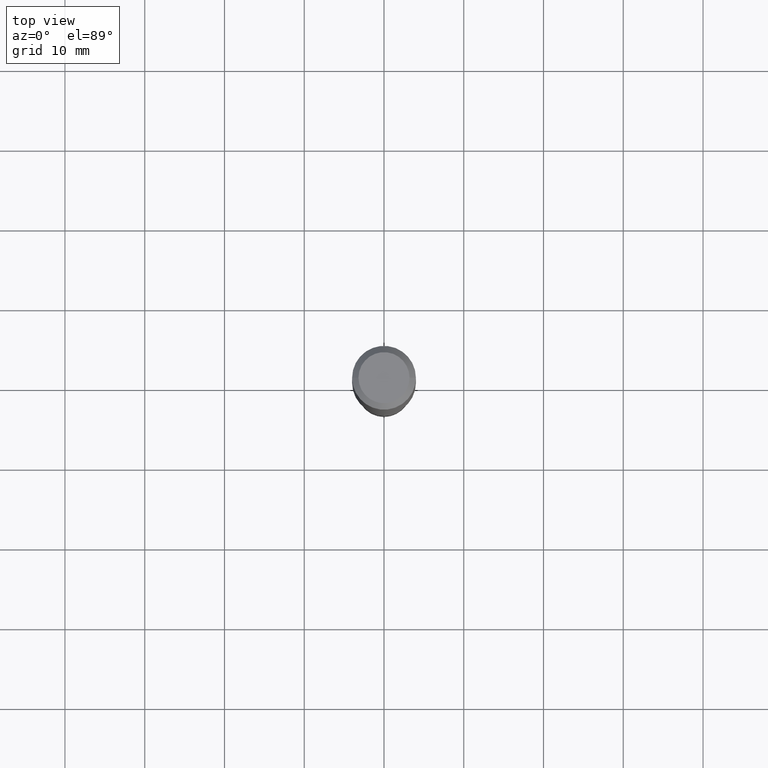
[diagram: clean part render]
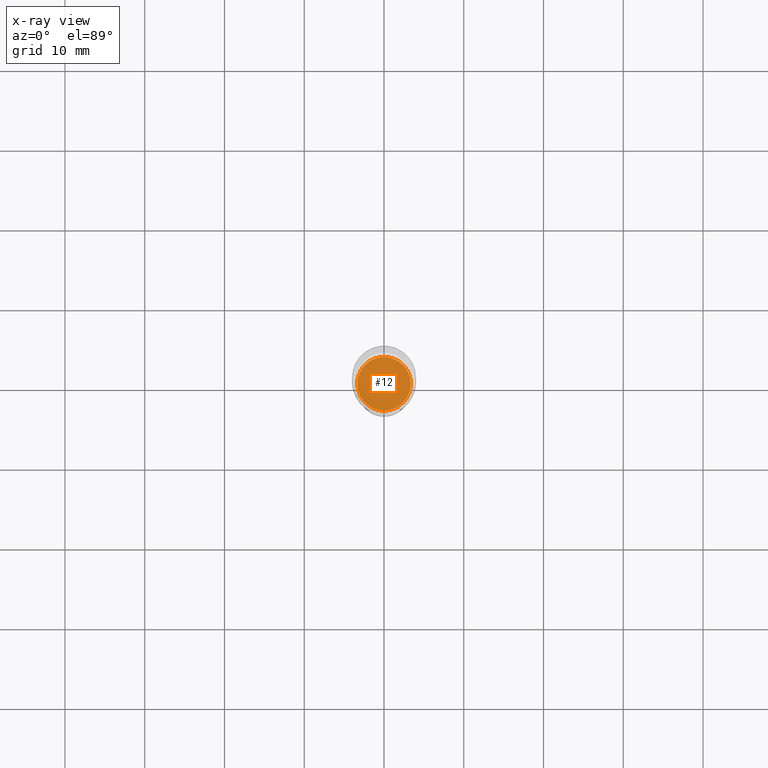
[diagram: x-ray — body ghosted, one internal face saturated and labeled with its STEP entity id]
A machine part, top view, then the same camera in x-ray: the body is ghosted and one INTERNAL B-rep face — a face not visible from any outside direction — is saturated and labeled: STEP entity #12.
In plain terms, the highlighted planar face has unit normal (-0, 0, 1).
Its self-contained STEP definition (entity closure, byte-faithful):
#4 = ORIENTED_EDGE ( 'NONE', *, *, #234, .F. ) ;
#12 = ADVANCED_FACE ( 'NONE', ( #461 ), #120, .F. ) ;
#16 = DIRECTION ( 'NONE',  ( 1.000000000000000000, -6.982962677686267499E-15, 0.000000000000000000 ) ) ;
#27 = DIRECTION ( 'NONE',  ( -2.445468806185136597E-29, 3.491481338843145583E-15, 1.000000000000000000 ) ) ;
#54 = CIRCLE ( 'NONE', #336, 0.1323000000000000009 ) ;
#82 = EDGE_LOOP ( 'NONE', ( #318, #4 ) ) ;
#90 = DIRECTION ( 'NONE',  ( -2.438088387897960049E-29, 3.491481338843145188E-15, 1.000000000000000000 ) ) ;
#120 = PLANE ( 'NONE',  #167 ) ;
#160 = CARTESIAN_POINT ( 'NONE',  ( 6.847996289675660133E-29, -2.513085268275572980E-15, -1.761599999999999611 ) ) ;
#167 = AXIS2_PLACEMENT_3D ( 'NONE', #160, #90, #201 ) ;
#193 = CARTESIAN_POINT ( 'NONE',  ( 4.307937848975735537E-29, -6.150593526506083554E-15, -1.761599999999999611 ) ) ;
#201 = DIRECTION ( 'NONE',  ( 1.000000000000000000, -6.982962677686265922E-15, 4.876176775795935793E-29 ) ) ;
#207 = CARTESIAN_POINT ( 'NONE',  ( 4.307937848975735537E-29, -6.150593526506083554E-15, -1.761599999999999611 ) ) ;
#212 = CARTESIAN_POINT ( 'NONE',  ( -0.1323000000000000009, -5.207896259921361575E-15, -1.761599999999999611 ) ) ;
#234 = EDGE_CURVE ( 'NONE', #272, #397, #433, .T. ) ;
#272 = VERTEX_POINT ( 'NONE', #212 ) ;
#280 = CARTESIAN_POINT ( 'NONE',  ( 0.1323000000000000009, -7.074439488763977163E-15, -1.761599999999999611 ) ) ;
#292 = DIRECTION ( 'NONE',  ( 1.000000000000000000, -6.982962677686267499E-15, 0.000000000000000000 ) ) ;
#318 = ORIENTED_EDGE ( 'NONE', *, *, #436, .F. ) ;
#336 = AXIS2_PLACEMENT_3D ( 'NONE', #193, #393, #16 ) ;
#349 = AXIS2_PLACEMENT_3D ( 'NONE', #207, #27, #292 ) ;
#393 = DIRECTION ( 'NONE',  ( -2.445468806185136597E-29, 3.491481338843145583E-15, 1.000000000000000000 ) ) ;
#397 = VERTEX_POINT ( 'NONE', #280 ) ;
#433 = CIRCLE ( 'NONE', #349, 0.1323000000000000009 ) ;
#436 = EDGE_CURVE ( 'NONE', #397, #272, #54, .T. ) ;
#461 = FACE_OUTER_BOUND ( 'NONE', #82, .T. ) ;